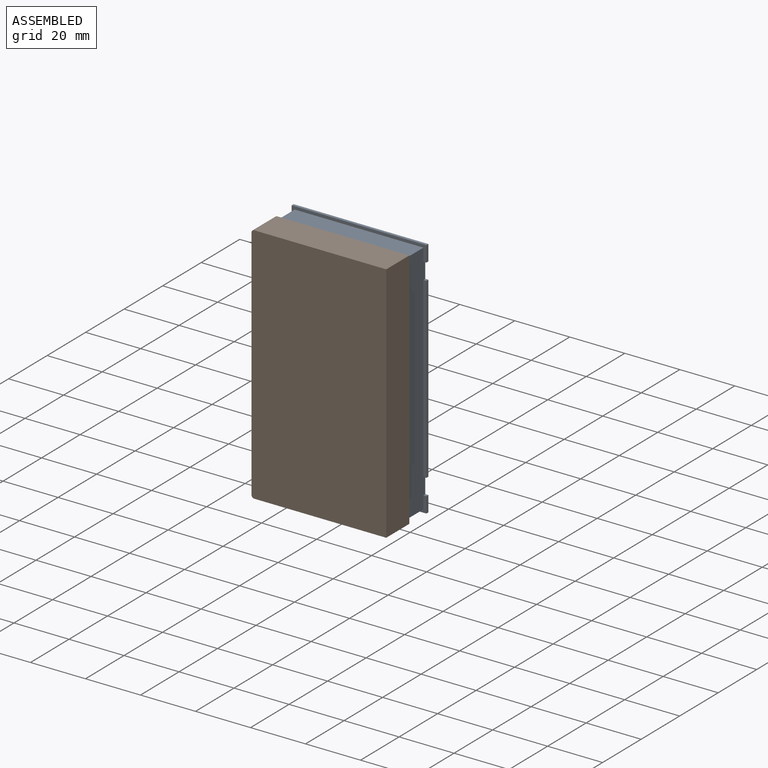
[diagram: assembled view]
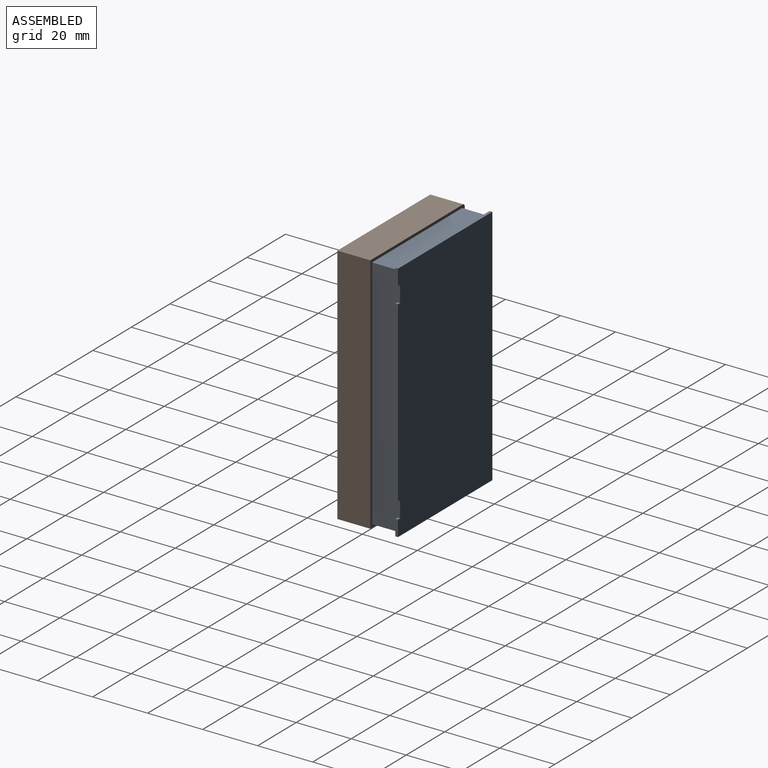
[diagram: assembled view, second angle]
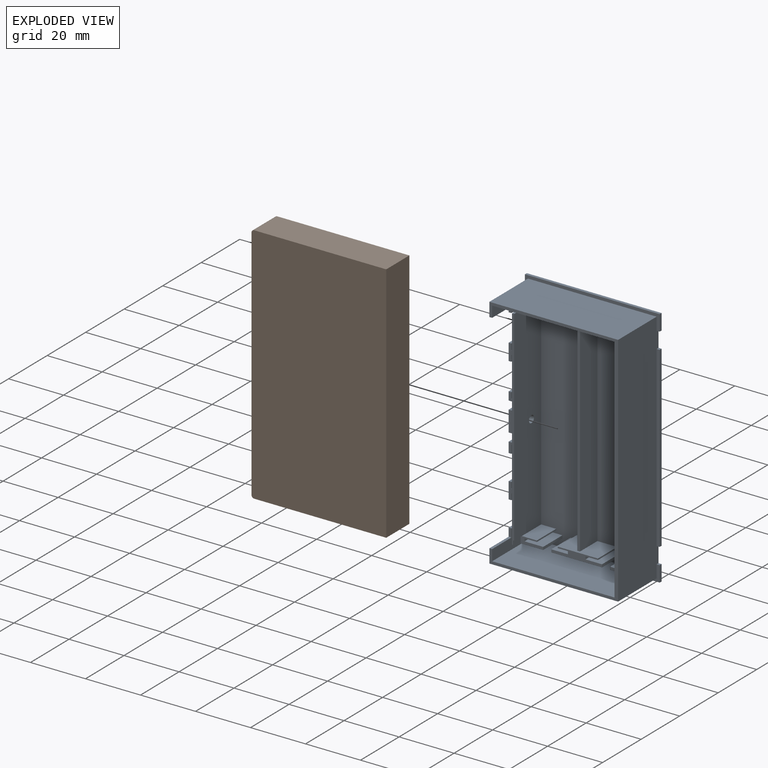
[diagram: exploded view]
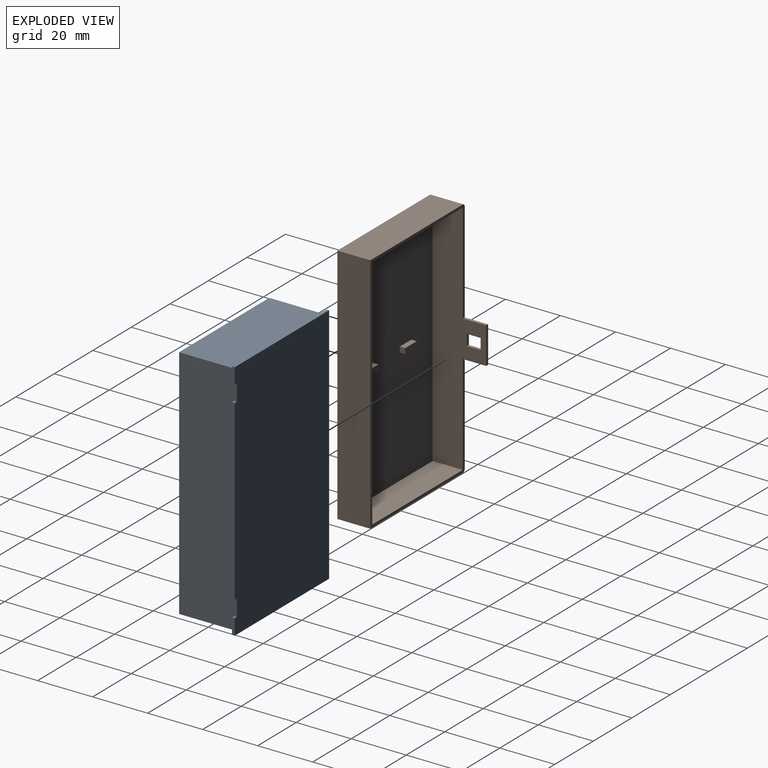
[diagram: exploded view, second angle]
ASSEMBLY  parts=2 mates=3
PART A: 136 faces, bbox 49x21x88.2 mm
  f0: plane 88.2x49mm, normal (0,-1,0), area 236.6mm2, adj f8,f9,f10,f11,f12,f13,f14,f15
  f1: plane 84x44.5mm, normal (0,-1,0), area 3290.8mm2, adj f3,f4,f28,f29,f30,f31,f42,f43
  f2: plane 14.5x1mm, normal (0,-1,0), area 14.5mm2, adj f36,f37,f38,f39
  f3: plane 10x1mm, normal (-1,0,0), area 10mm2, adj f1,f28,f91,f92
  f4: plane 10x1mm, normal (-1,0,0), area 10mm2, adj f1,f45,f115,f122
  f5: plane 14.5x1mm, normal (0,-1,0), area 14.5mm2, adj f22,f23,f24,f25
  f6: plane 64.74x1.1mm, normal (0,-1,0), area 71.2mm2, adj f7,f15,f16,f17
  f7: plane 1.1x1mm, normal (0,0,1), area 1.1mm2, adj f6,f15,f17,f18
  f8: plane 1.1x1mm, normal (0,0,-1), area 1.1mm2, adj f0,f9,f15,f18
  f9: plane 5.73x1mm, normal (1,0,0), area 5.7mm2, adj f0,f8,f10,f18
  f10: plane 49x1mm, normal (0,0,1), area 49mm2, adj f0,f9,f11,f18
  f11: plane 88.2x1mm, normal (-1,0,0), area 88.2mm2, adj f0,f10,f12,f18
  f12: plane 49x1mm, normal (0,0,-1), area 49mm2, adj f0,f11,f13,f18
  f13: plane 5.73x1mm, normal (1,0,0), area 5.7mm2, adj f0,f12,f14,f18
  f14: plane 1.1x1mm, normal (0,0,1), area 1.1mm2, adj f0,f13,f15,f18
  f15: plane 86x21mm, normal (1,0,0), area 1732mm2, adj f0,f6,f7,f8,f14,f16,f18,f57
  f16: plane 1.1x1mm, normal (0,0,-1), area 1.1mm2, adj f6,f15,f17,f18
  f17: plane 64.74x1mm, normal (1,0,0), area 64.7mm2, adj f6,f7,f16,f18
  f18: plane 88.2x49mm, normal (0,1,0), area 4308.6mm2, adj f7,f8,f9,f10,f11,f12,f13,f14
  f19: plane 9x1mm, normal (0,0,1), area 9mm2, adj f20,f31,f32,f133
  f20: plane 36.25x20mm, normal (-1,0,0), area 232.5mm2, adj f0,f19,f21,f26,f27,f32,f53,f54
  f21: plane 9x1mm, normal (0,0,-1), area 9mm2, adj f20,f22,f32,f132
  f22: plane 14.5x10mm, normal (1,0,0), area 55mm2, adj f5,f21,f23,f25,f26,f32,f132
  f23: plane 10x1mm, normal (0,0,-1), area 10mm2, adj f5,f22,f24,f32
  f24: plane 14.5x10mm, normal (-1,0,0), area 145mm2, adj f5,f23,f25,f32
  f25: plane 10x1mm, normal (0,0,1), area 10mm2, adj f5,f22,f24,f32
  f26: plane 9x1mm, normal (0,0,1), area 9mm2, adj f20,f22,f32,f132
  f27: plane 10x4mm, normal (0,0,-1), area 40mm2, adj f0,f20,f32,f128
  f28: plane 14x2.8mm, normal (0,0,1), area 31.2mm2, adj f1,f3,f29,f32,f128,f129,f130
  f29: plane 14.5x10mm, normal (-1,0,0), area 145mm2, adj f1,f28,f30,f32
  f30: plane 10x1mm, normal (0,0,1), area 10mm2, adj f1,f29,f31,f32
  f31: plane 20x18.5mm, normal (1,0,0), area 135mm2, adj f1,f19,f30,f32,f53,f54,f55,f58
  f32: plane 31.25x4mm, normal (0,-1,0), area 73.7mm2, adj f19,f20,f21,f22,f23,f24,f25,f26
  f33: plane 10x4mm, normal (0,0,1), area 40mm2, adj f0,f34,f46,f128
  f34: plane 36.25x20mm, normal (-1,0,0), area 246mm2, adj f0,f33,f35,f40,f41,f46,f51,f52
  f35: plane 9x1mm, normal (0,0,-1), area 9mm2, adj f34,f36,f46,f134
  f36: plane 14.5x10mm, normal (1,0,0), area 61.8mm2, adj f2,f35,f37,f39,f40,f46,f134
  f37: plane 10x1mm, normal (0,0,-1), area 10mm2, adj f2,f36,f38,f46
  f38: plane 14.5x10mm, normal (-1,0,0), area 145mm2, adj f2,f37,f39,f46
  f39: plane 10x1mm, normal (0,0,1), area 10mm2, adj f2,f36,f38,f46
  f40: plane 9x1mm, normal (0,0,1), area 9mm2, adj f34,f36,f46,f134
  f41: plane 9x1mm, normal (0,0,-1), area 9mm2, adj f34,f42,f46,f135
  f42: plane 20x18.5mm, normal (1,0,0), area 141.7mm2, adj f1,f41,f43,f46,f51,f52,f56,f60
  f43: plane 10x1mm, normal (0,0,-1), area 10mm2, adj f1,f42,f44,f46
  f44: plane 14.5x10mm, normal (-1,0,0), area 145mm2, adj f1,f43,f45,f46
  f45: plane 14x2.37mm, normal (0,0,-1), area 25.2mm2, adj f1,f4,f44,f46,f126,f128,f130
  f46: plane 31.25x4mm, normal (0,-1,0), area 74.5mm2, adj f33,f34,f35,f36,f37,f38,f39,f40
  f47: plane 10x4mm, normal (0,0,1), area 40mm2, adj f0,f48,f50,f128
  f48: plane 10x7.5mm, normal (-1,0,0), area 69.7mm2, adj f0,f47,f49,f50,f131
  f49: plane 10x4mm, normal (0,0,-1), area 40mm2, adj f0,f48,f50,f128
  f50: plane 7.5x4mm, normal (0,-1,0), area 30mm2, adj f47,f48,f49,f128
  f51: plane 9x1mm, normal (0,0,1), area 9mm2, adj f34,f42,f52,f135
  f52: plane 3x1mm, normal (0,-1,0), area 3mm2, adj f34,f42,f51,f56
  f53: plane 9x1mm, normal (0,0,-1), area 9mm2, adj f20,f31,f54,f133
  f54: plane 2.25x1mm, normal (0,-1,0), area 2.3mm2, adj f20,f31,f53,f55
  f55: plane 10x1mm, normal (0,0,-1), area 10mm2, adj f20,f31,f54,f62
  f56: plane 10x1mm, normal (0,0,1), area 10mm2, adj f34,f42,f52,f62
  f57: plane 46.8x20mm, normal (0,0,1), area 936mm2, adj f0,f15,f20,f62
  f58: plane 44.5x20mm, normal (0,0,-1), area 890mm2, adj f1,f31,f59,f62
  f59: plane 84x20mm, normal (-1,0,0), area 1680mm2, adj f1,f58,f60,f62
  f60: plane 44.5x20mm, normal (0,0,1), area 890mm2, adj f1,f42,f59,f62
  f61: plane 46.8x20mm, normal (0,0,-1), area 936mm2, adj f0,f15,f34,f62
  f62: plane 86x46.8mm, normal (0,-1,0), area 210.8mm2, adj f15,f20,f31,f34,f42,f55,f56,f57
  f63: plane 10x1mm, normal (-1,0,0), area 10mm2, adj f1,f64,f70,f71
  f64: plane 10x6mm, normal (0,0,-1), area 60mm2, adj f1,f63,f65,f71
  f65: plane 10x1mm, normal (-1,0,0), area 10mm2, adj f1,f64,f66,f71
  f66: plane 10x4.5mm, normal (0,0,1), area 45mm2, adj f1,f65,f67,f71
  f67: plane 10x0.5mm, normal (-1,0,0), area 5mm2, adj f1,f66,f68,f71
  f68: plane 10x6.5mm, normal (0,0,-1), area 65mm2, adj f1,f67,f69,f71
  f69: plane 10x2.5mm, normal (1,0,0), area 25mm2, adj f1,f68,f70,f71
  f70: plane 10x8mm, normal (0,0,1), area 80mm2, adj f1,f63,f69,f71
  f71: plane 8x2.5mm, normal (0,-1,0), area 13.3mm2, adj f63,f64,f65,f66,f67,f68,f69,f70
  f72: plane 15.15x10mm, normal (0,0,-1), area 142.5mm2, adj f1,f73,f83,f84,f123,f124,f125
  f73: plane 10x0.5mm, normal (1,0,0), area 5mm2, adj f1,f72,f74,f84
  f74: plane 10x4.5mm, normal (0,0,1), area 45mm2, adj f1,f73,f75,f84
  f75: plane 10x1mm, normal (1,0,0), area 10mm2, adj f1,f74,f76,f84
  f76: plane 10x6mm, normal (0,0,-1), area 60mm2, adj f1,f75,f77,f84
  f77: plane 10x1mm, normal (1,0,0), area 10mm2, adj f1,f76,f78,f84
  f78: plane 18.15x10mm, normal (0,0,1), area 181.5mm2, adj f1,f77,f79,f84
  f79: plane 10x1mm, normal (-1,0,0), area 10mm2, adj f1,f78,f80,f84
  f80: plane 10x6mm, normal (0,0,-1), area 60mm2, adj f1,f79,f81,f84
  f81: plane 10x1mm, normal (-1,0,0), area 10mm2, adj f1,f80,f82,f84
  f82: plane 10x4.5mm, normal (0,0,1), area 45mm2, adj f1,f81,f83,f84
  f83: plane 10x0.5mm, normal (-1,0,0), area 5mm2, adj f1,f72,f82,f84
  f84: plane 18.15x2.5mm, normal (0,-1,0), area 31.9mm2, adj f72,f73,f74,f75,f76,f77,f78,f79
  f85: plane 10x6.25mm, normal (0,0,-1), area 62.5mm2, adj f1,f86,f92,f129
  f86: plane 10x0.5mm, normal (1,0,0), area 5mm2, adj f1,f85,f87,f92
  f87: plane 10x4.5mm, normal (0,0,1), area 45mm2, adj f1,f86,f88,f92
  f88: plane 10x1mm, normal (1,0,0), area 10mm2, adj f1,f87,f89,f92
  f89: plane 10x6mm, normal (0,0,-1), area 60mm2, adj f1,f88,f90,f92
  f90: plane 10x1mm, normal (1,0,0), area 10mm2, adj f1,f89,f91,f92
  f91: plane 10x7.75mm, normal (0,0,1), area 77.5mm2, adj f1,f3,f90,f92
  f92: plane 7.75x2.5mm, normal (0,-1,0), area 12.6mm2, adj f3,f85,f86,f87,f88,f89,f90,f91
  f93: plane 14.61x10mm, normal (0,0,1), area 137.1mm2, adj f1,f94,f104,f105,f123,f124,f125
  f94: plane 10x0.5mm, normal (-1,0,0), area 5mm2, adj f1,f93,f95,f105
  f95: plane 10x3.71mm, normal (0,0,-1), area 37.1mm2, adj f1,f94,f96,f105
  f96: plane 10x1mm, normal (-1,0,0), area 10mm2, adj f1,f95,f97,f105
  f97: plane 10x6mm, normal (0,0,1), area 60mm2, adj f1,f96,f98,f105
  f98: plane 10x1mm, normal (-1,0,0), area 10mm2, adj f1,f97,f99,f105
  f99: plane 18.4x10mm, normal (0,0,-1), area 184mm2, adj f1,f98,f100,f105
  f100: plane 10x1mm, normal (1,0,0), area 10mm2, adj f1,f99,f101,f105
  f101: plane 10x6mm, normal (0,0,1), area 60mm2, adj f1,f100,f102,f105
  f102: plane 10x1mm, normal (1,0,0), area 10mm2, adj f1,f101,f103,f105
  f103: plane 10x4.5mm, normal (0,0,-1), area 45mm2, adj f1,f102,f104,f105
  f104: plane 10x0.5mm, normal (1,0,0), area 5mm2, adj f1,f93,f103,f105
  f105: plane 18.4x2.5mm, normal (0,-1,0), area 32.1mm2, adj f93,f94,f95,f96,f97,f98,f99,f100
  f106: plane 10x6.25mm, normal (0,0,1), area 62.5mm2, adj f1,f107,f113,f114
  f107: plane 10x0.5mm, normal (-1,0,0), area 5mm2, adj f1,f106,f108,f114
  f108: plane 10x4.5mm, normal (0,0,-1), area 45mm2, adj f1,f107,f109,f114
  f109: plane 10x1mm, normal (-1,0,0), area 10mm2, adj f1,f108,f110,f114
  f110: plane 10x6mm, normal (0,0,1), area 60mm2, adj f1,f109,f111,f114
  f111: plane 10x1mm, normal (-1,0,0), area 10mm2, adj f1,f110,f112,f114
  f112: plane 10x7.75mm, normal (0,0,-1), area 77.5mm2, adj f1,f111,f113,f114
  f113: plane 10x2.5mm, normal (1,0,0), area 25mm2, adj f1,f106,f112,f114
  f114: plane 7.75x2.5mm, normal (0,-1,0), area 12.6mm2, adj f106,f107,f108,f109,f110,f111,f112,f113
  f115: plane 10x8.18mm, normal (0,0,-1), area 81.8mm2, adj f1,f4,f116,f122
  f116: plane 10x1mm, normal (1,0,0), area 10mm2, adj f1,f115,f117,f122
  f117: plane 10x6.79mm, normal (0,0,1), area 67.9mm2, adj f1,f116,f118,f122
  f118: plane 10x1mm, normal (1,0,0), area 10mm2, adj f1,f117,f119,f122
  f119: plane 10x4.5mm, normal (0,0,-1), area 45mm2, adj f1,f118,f120,f122
  f120: plane 10x0.5mm, normal (1,0,0), area 5mm2, adj f1,f119,f121,f122
  f121: plane 10x5.46mm, normal (0,0,1), area 54.6mm2, adj f1,f120,f122,f129
  f122: plane 8.18x2.5mm, normal (0,-1,0), area 12.5mm2, adj f4,f115,f116,f117,f118,f119,f120,f121
  f123: plane 73x9mm, normal (-1,0,0), area 657mm2, adj f1,f72,f93,f125
  f124: plane 73x9mm, normal (1,0,0), area 657mm2, adj f1,f72,f93,f125
  f125: plane 73x1mm, normal (0,-1,0), area 73mm2, adj f72,f93,f123,f124
  f126: plane 4x1.5mm, normal (1,0,0), area 6mm2, adj f45,f122,f127,f130
  f127: plane 4x0.43mm, normal (0,0,-1), area 1.7mm2, adj f122,f126,f129,f130
  f128: plane 76x14mm, normal (-1,0,0), area 364mm2, adj f0,f27,f28,f32,f33,f45,f46,f47
  f129: plane 74.5x14mm, normal (1,0,0), area 1022.7mm2, adj f1,f28,f85,f92,f121,f127,f130,f131
  f130: plane 76x0.8mm, normal (0,-1,0), area 60.2mm2, adj f28,f45,f126,f127,f128,f129
  f131: cylinder r=1.3mm len=4.8mm, axis (-1,0,0), area 39.2mm2, adj f48,f129
  f132: plane 10x1mm, normal (0,-1,0), area 10mm2, adj f20,f21,f22,f26
  f133: plane 10x1mm, normal (0,-1,0), area 10mm2, adj f19,f20,f31,f53
  f134: plane 9.25x1mm, normal (0,-1,0), area 9.3mm2, adj f34,f35,f36,f40
  f135: plane 9.25x1mm, normal (0,-1,0), area 9.3mm2, adj f34,f41,f42,f51
PART B: 30 faces, bbox 49x20.5x88.2 mm
  f0: plane 86.2x20.5mm, normal (-1,0,0), area 1127.4mm2, adj f2,f3,f8,f12,f13,f14,f15,f26
  f1: plane 86.2x19.5mm, normal (1,0,0), area 1041.2mm2, adj f7,f9,f11,f12,f13,f14,f15,f26
  f2: cylinder r=1mm len=12mm, axis (0,1,0), area 18.8mm2, adj f0,f6,f8,f12
  f3: cylinder r=1mm len=12mm, axis (0,1,0), area 18.8mm2, adj f0,f4,f8,f12
  f4: plane 48x12mm, normal (0,0,-1), area 576mm2, adj f3,f5,f8,f12
  f5: plane 88.2x12mm, normal (1,0,0), area 1058.4mm2, adj f4,f6,f8,f12
  f6: plane 48x12mm, normal (0,0,1), area 576mm2, adj f2,f5,f8,f12
  f7: plane 86.2x47mm, normal (0,-1,0), area 4027.4mm2, adj f1,f9,f10,f11,f16,f17,f18,f19
  f8: plane 88.2x49mm, normal (0,1,0), area 4321.4mm2, adj f0,f2,f3,f4,f5,f6
  f9: plane 47x11mm, normal (0,0,-1), area 517mm2, adj f1,f7,f10,f12
  f10: plane 86.2x11mm, normal (-1,0,0), area 948.2mm2, adj f7,f9,f11,f12
  f11: plane 47x11mm, normal (0,0,1), area 517mm2, adj f1,f7,f10,f12
  f12: plane 88.2x49mm, normal (0,-1,0), area 256.7mm2, adj f0,f1,f2,f3,f4,f5,f6,f9
  f13: plane 8.5x1mm, normal (0,0,1), area 8.5mm2, adj f0,f1,f12,f15
  f14: plane 8.5x1mm, normal (0,0,-1), area 8.5mm2, adj f0,f1,f12,f15
  f15: plane 13.3x1mm, normal (0,-1,0), area 13.3mm2, adj f0,f1,f13,f14
  f16: plane 6x2mm, normal (0,0,1), area 12mm2, adj f7,f17,f19,f20
  f17: plane 2x2mm, normal (-1,0,0), area 4mm2, adj f7,f16,f18,f20
  f18: plane 6x2mm, normal (0,0,-1), area 12mm2, adj f7,f17,f19,f20
  f19: plane 2x2mm, normal (1,0,0), area 4mm2, adj f7,f16,f18,f20
  f20: plane 6x2mm, normal (0,-1,0), area 12mm2, adj f16,f17,f18,f19
  f21: plane 6x2mm, normal (0,0,1), area 12mm2, adj f7,f22,f24,f25
  f22: plane 2x2mm, normal (-1,0,0), area 4mm2, adj f7,f21,f23,f25
  f23: plane 6x2mm, normal (0,0,-1), area 12mm2, adj f7,f22,f24,f25
  f24: plane 2x2mm, normal (1,0,0), area 4mm2, adj f7,f21,f23,f25
  f25: plane 6x2mm, normal (0,-1,0), area 12mm2, adj f21,f22,f23,f24
  f26: plane 5x1mm, normal (0,0,-1), area 5mm2, adj f0,f1,f27,f29
  f27: plane 4x1mm, normal (0,-1,0), area 4mm2, adj f0,f1,f26,f28
  f28: plane 5x1mm, normal (0,0,1), area 5mm2, adj f0,f1,f27,f29
  f29: plane 4x1mm, normal (0,1,0), area 4mm2, adj f0,f1,f26,f28
PLACE A t=(-44.07,11.84,28.6)mm
PLACE B rot(axis=(1,0,0),180deg) t=(-90.57,-10.16,114.8)mm
MATE planar B.f1 <-> A.f131  axis (1,0,0) through (-89.57,-2.78,70.7)mm
MATE planar A.f62 <-> B.f7  axis (0,-1,0) through (-55.25,-9.16,70.6)mm
MATE planar B.f9 <-> A.f61  axis (0,0,1) through (-66.07,-3.66,27.6)mm
